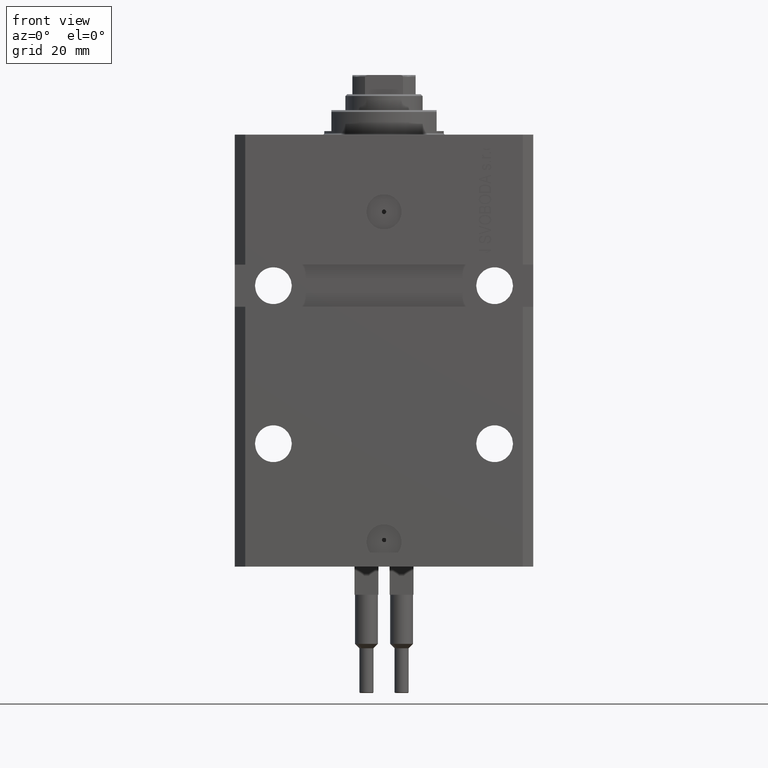
[diagram: clean part render]
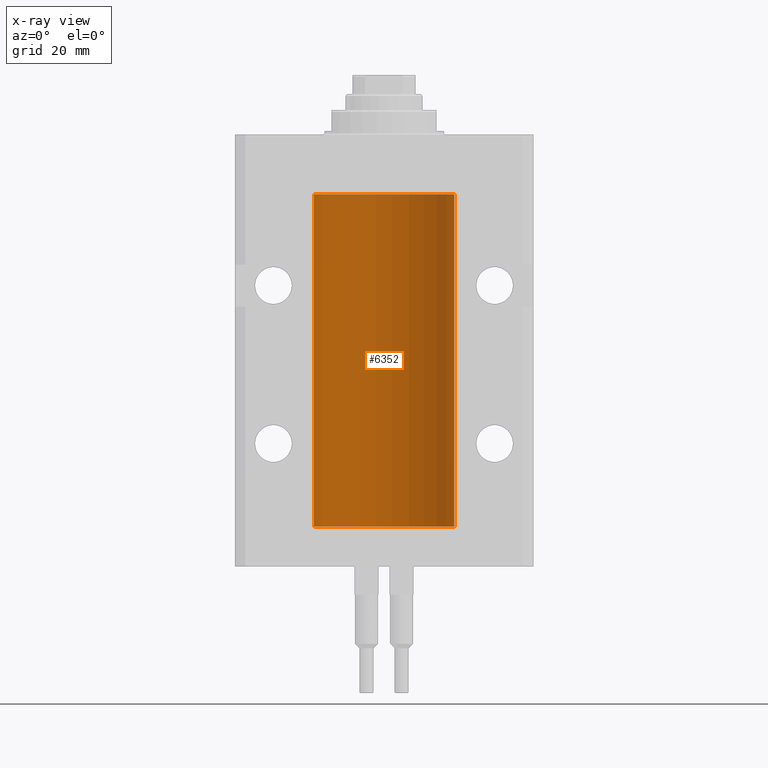
[diagram: x-ray — body ghosted, one internal face saturated and labeled with its STEP entity id]
A machine part, front view, then the same camera in x-ray: the body is ghosted and one INTERNAL B-rep face — a face not visible from any outside direction — is saturated and labeled: STEP entity #6352.
In plain terms, the highlighted cylindrical surface (partial cylindrical patch) has radius 20 mm, axis along (0, 0, 1).
Its self-contained STEP definition (entity closure, byte-faithful):
#286 = CIRCLE ( 'NONE', #48491, 20.00000000000000000 ) ;
#1000 = CARTESIAN_POINT ( 'NONE',  ( -19.99766197842594906, 0.3150331617867667688, -23.45402070102505476 ) ) ;
#1161 = DIRECTION ( 'NONE',  ( -0.000000000000000000, -0.000000000000000000, 1.000000000000000000 ) ) ;
#1208 = CARTESIAN_POINT ( 'NONE',  ( -20.00000000000000000, 2.449293598294706513E-15, -17.00000000000000000 ) ) ;
#1997 = DIRECTION ( 'NONE',  ( 1.000000000000000000, 0.000000000000000000, 0.000000000000000000 ) ) ;
#3698 = VERTEX_POINT ( 'NONE', #28200 ) ;
#4472 = CARTESIAN_POINT ( 'NONE',  ( -19.99638934703457593, 0.3843678041337688644, -23.50046362978100944 ) ) ;
#4474 = CARTESIAN_POINT ( 'NONE',  ( -20.00000000000000355, 0.1631688615953337806, -109.6249999999998721 ) ) ;
#4703 = CARTESIAN_POINT ( 'NONE',  ( -19.99023018003212471, 0.6250578794725500931, -24.16284809704970371 ) ) ;
#4803 = AXIS2_PLACEMENT_3D ( 'NONE', #20791, #36129, #1997 ) ;
#5128 = VECTOR ( 'NONE', #29994, 1000.000000000000000 ) ;
#6352 = ADVANCED_FACE ( 'NONE', ( #19794 ), #8648, .F. ) ;
#7706 = CARTESIAN_POINT ( 'NONE',  ( -19.99023018003212471, 0.6250578794725484277, -109.1628480970496895 ) ) ;
#7731 = LINE ( 'NONE', #45819, #5128 ) ;
#8087 = CARTESIAN_POINT ( 'NONE',  ( 20.00000000000000000, 0.000000000000000000, -111.5999999999999943 ) ) ;
#8187 = CARTESIAN_POINT ( 'NONE',  ( -19.99256581701871838, 0.5573276956901952461, -108.6734856577094916 ) ) ;
#8648 = CYLINDRICAL_SURFACE ( 'NONE', #27100, 20.00000000000000000 ) ;
#8658 = CARTESIAN_POINT ( 'NONE',  ( -20.00000000000000000, -1.494965790691426527E-14, -108.3750000000000000 ) ) ;
#10841 = ORIENTED_EDGE ( 'NONE', *, *, #16508, .T. ) ;
#11418 = CARTESIAN_POINT ( 'NONE',  ( -19.99638934703457593, 0.3843678041337614260, -108.5004636297810094 ) ) ;
#12228 = CARTESIAN_POINT ( 'NONE',  ( 0.000000000000000000, 0.000000000000000000, -17.00000000000000000 ) ) ;
#12374 = CARTESIAN_POINT ( 'NONE',  ( -19.99253506710754991, 0.5587120480776751608, -24.32511620830248589 ) ) ;
#15380 = CARTESIAN_POINT ( 'NONE',  ( -20.00000000000000000, 0.1631688615953320320, -24.62499999999985434 ) ) ;
#16508 = EDGE_CURVE ( 'NONE', #3698, #47296, #32268, .T. ) ;
#17510 = VERTEX_POINT ( 'NONE', #1208 ) ;
#19086 = CARTESIAN_POINT ( 'NONE',  ( -20.00000000000010303, 3.580159290815452135E-13, -109.6250000000033253 ) ) ;
#19329 = CARTESIAN_POINT ( 'NONE',  ( -20.00000000000000000, -2.867584836844214272E-15, -23.37500000000000000 ) ) ;
#19794 = FACE_OUTER_BOUND ( 'NONE', #37758, .T. ) ;
#19962 = LINE ( 'NONE', #34330, #41557 ) ;
#20609 = CARTESIAN_POINT ( 'NONE',  ( 20.00000000000000000, 0.000000000000000000, -111.5999999999999943 ) ) ;
#20791 = CARTESIAN_POINT ( 'NONE',  ( 0.000000000000000000, 0.000000000000000000, -111.5999999999999943 ) ) ;
#22207 = DIRECTION ( 'NONE',  ( -0.000000000000000000, -0.000000000000000000, 1.000000000000000000 ) ) ;
#23031 = CARTESIAN_POINT ( 'NONE',  ( -19.99253506710754991, 0.5587120480776772702, -109.3251162083024894 ) ) ;
#23436 = ORIENTED_EDGE ( 'NONE', *, *, #47057, .F. ) ;
#23744 = CARTESIAN_POINT ( 'NONE',  ( -19.99766197842594906, 0.3150331617867563327, -108.4540207010250299 ) ) ;
#24148 = LINE ( 'NONE', #39241, #29928 ) ;
#25298 = CARTESIAN_POINT ( 'NONE',  ( -20.00000000000000000, 2.449293598294706513E-15, -111.5999999999999943 ) ) ;
#26156 = CIRCLE ( 'NONE', #4803, 20.00000000000000000 ) ;
#26419 = LINE ( 'NONE', #8087, #42663 ) ;
#26770 = EDGE_CURVE ( 'NONE', #36609, #17510, #286, .T. ) ;
#27100 = AXIS2_PLACEMENT_3D ( 'NONE', #37636, #38123, #34638 ) ;
#27232 = CARTESIAN_POINT ( 'NONE',  ( -19.99999999999999645, 0.08259581631026780002, -23.37500000000000000 ) ) ;
#27463 = CARTESIAN_POINT ( 'NONE',  ( -20.00000000000010303, 3.580159278407742946E-13, -24.62500000000332889 ) ) ;
#27502 = CARTESIAN_POINT ( 'NONE',  ( 20.00000000000000000, 0.000000000000000000, -17.00000000000000000 ) ) ;
#28200 = CARTESIAN_POINT ( 'NONE',  ( -20.00000000000000000, -1.494965790691426527E-14, -108.3750000000000000 ) ) ;
#29563 = ORIENTED_EDGE ( 'NONE', *, *, #35926, .F. ) ;
#29585 = EDGE_CURVE ( 'NONE', #3698, #38219, #7731, .T. ) ;
#29928 = VECTOR ( 'NONE', #43210, 1000.000000000000000 ) ;
#29994 = DIRECTION ( 'NONE',  ( -0.000000000000000000, -0.000000000000000000, 1.000000000000000000 ) ) ;
#30218 = CARTESIAN_POINT ( 'NONE',  ( -19.99947377218718358, 0.1636439183262759223, -108.3912636400465459 ) ) ;
#30561 = DIRECTION ( 'NONE',  ( 0.000000000000000000, 0.000000000000000000, 1.000000000000000000 ) ) ;
#30936 = CARTESIAN_POINT ( 'NONE',  ( -19.99023380173165876, 0.6249420416828411762, -108.8367079305639322 ) ) ;
#31174 = CARTESIAN_POINT ( 'NONE',  ( -19.99999999999999289, 0.08259581631025748882, -108.3749999999999716 ) ) ;
#31493 = ORIENTED_EDGE ( 'NONE', *, *, #26770, .T. ) ;
#32167 = ORIENTED_EDGE ( 'NONE', *, *, #41689, .F. ) ;
#32268 = B_SPLINE_CURVE_WITH_KNOTS ( 'NONE', 3,
 ( #8658, #31174, #30218, #23744, #11418, #8187, #30936, #7706, #23031, #38365, #4474, #19086 ),
 .UNSPECIFIED., .F., .F.,
 ( 4, 2, 2, 2, 2, 4 ),
 ( 1.555867690894744095E-18, 0.0002442693137305176681, 0.0004885386274610337099, 0.0009770772549220949586, 0.001465615882383156099, 0.001954154509844217673 ),
 .UNSPECIFIED. ) ;
#32507 = EDGE_CURVE ( 'NONE', #32827, #38219, #47798, .T. ) ;
#32827 = VERTEX_POINT ( 'NONE', #38781 ) ;
#34330 = CARTESIAN_POINT ( 'NONE',  ( -20.00000000000000000, 2.449293598294706513E-15, -111.5999999999999943 ) ) ;
#34638 = DIRECTION ( 'NONE',  ( 1.000000000000000000, 0.000000000000000000, 0.000000000000000000 ) ) ;
#34643 = CARTESIAN_POINT ( 'NONE',  ( -19.99769349528941120, 0.3253804398728645242, -24.55855820727680339 ) ) ;
#35926 = EDGE_CURVE ( 'NONE', #32827, #17510, #19962, .T. ) ;
#36030 = ORIENTED_EDGE ( 'NONE', *, *, #29585, .F. ) ;
#36129 = DIRECTION ( 'NONE',  ( 0.000000000000000000, 0.000000000000000000, 1.000000000000000000 ) ) ;
#36609 = VERTEX_POINT ( 'NONE', #27502 ) ;
#37636 = CARTESIAN_POINT ( 'NONE',  ( 0.000000000000000000, 0.000000000000000000, -111.5999999999999943 ) ) ;
#37758 = EDGE_LOOP ( 'NONE', ( #32167, #23436, #39028, #31493, #29563, #41477, #36030, #10841 ) ) ;
#38123 = DIRECTION ( 'NONE',  ( -0.000000000000000000, -0.000000000000000000, 1.000000000000000000 ) ) ;
#38219 = VERTEX_POINT ( 'NONE', #46246 ) ;
#38365 = CARTESIAN_POINT ( 'NONE',  ( -19.99769349528941476, 0.3253804398728720182, -109.5585582072768318 ) ) ;
#38456 = DIRECTION ( 'NONE',  ( 1.000000000000000000, 0.000000000000000000, 0.000000000000000000 ) ) ;
#38781 = CARTESIAN_POINT ( 'NONE',  ( -20.00000000000000000, -2.867584836844214272E-15, -23.37500000000000000 ) ) ;
#39028 = ORIENTED_EDGE ( 'NONE', *, *, #48302, .T. ) ;
#39241 = CARTESIAN_POINT ( 'NONE',  ( -20.00000000000000000, 2.449293598294706513E-15, -111.5999999999999943 ) ) ;
#39280 = CARTESIAN_POINT ( 'NONE',  ( -20.00000000000010303, 3.580159290815452135E-13, -109.6250000000033253 ) ) ;
#41477 = ORIENTED_EDGE ( 'NONE', *, *, #32507, .T. ) ;
#41557 = VECTOR ( 'NONE', #1161, 1000.000000000000000 ) ;
#41689 = EDGE_CURVE ( 'NONE', #45551, #47296, #24148, .T. ) ;
#41842 = CARTESIAN_POINT ( 'NONE',  ( -19.99947377218718714, 0.1636439183262877461, -23.39126364004656011 ) ) ;
#42663 = VECTOR ( 'NONE', #22207, 1000.000000000000000 ) ;
#43210 = DIRECTION ( 'NONE',  ( -0.000000000000000000, -0.000000000000000000, 1.000000000000000000 ) ) ;
#45401 = VERTEX_POINT ( 'NONE', #20609 ) ;
#45551 = VERTEX_POINT ( 'NONE', #25298 ) ;
#45554 = CARTESIAN_POINT ( 'NONE',  ( -19.99023380173166231, 0.6249420416828462832, -23.83670793056396064 ) ) ;
#45819 = CARTESIAN_POINT ( 'NONE',  ( -20.00000000000000000, 2.449293598294706513E-15, -111.5999999999999943 ) ) ;
#46246 = CARTESIAN_POINT ( 'NONE',  ( -20.00000000000010303, 3.580159278407742946E-13, -24.62500000000332889 ) ) ;
#46265 = CARTESIAN_POINT ( 'NONE',  ( -19.99256581701871482, 0.5573276956902001311, -23.67348565770948809 ) ) ;
#47057 = EDGE_CURVE ( 'NONE', #45401, #45551, #26156, .T. ) ;
#47296 = VERTEX_POINT ( 'NONE', #39280 ) ;
#47798 = B_SPLINE_CURVE_WITH_KNOTS ( 'NONE', 3,
 ( #19329, #27232, #41842, #1000, #4472, #46265, #45554, #4703, #12374, #34643, #15380, #27463 ),
 .UNSPECIFIED., .F., .F.,
 ( 4, 2, 2, 2, 2, 4 ),
 ( 5.848927291235706941E-19, 0.0002442693137305304075, 0.0004885386274610601645, 0.0009770772549221123059, 0.001465615882383164339, 0.001954154509844215938 ),
 .UNSPECIFIED. ) ;
#48302 = EDGE_CURVE ( 'NONE', #45401, #36609, #26419, .T. ) ;
#48491 = AXIS2_PLACEMENT_3D ( 'NONE', #12228, #30561, #38456 ) ;